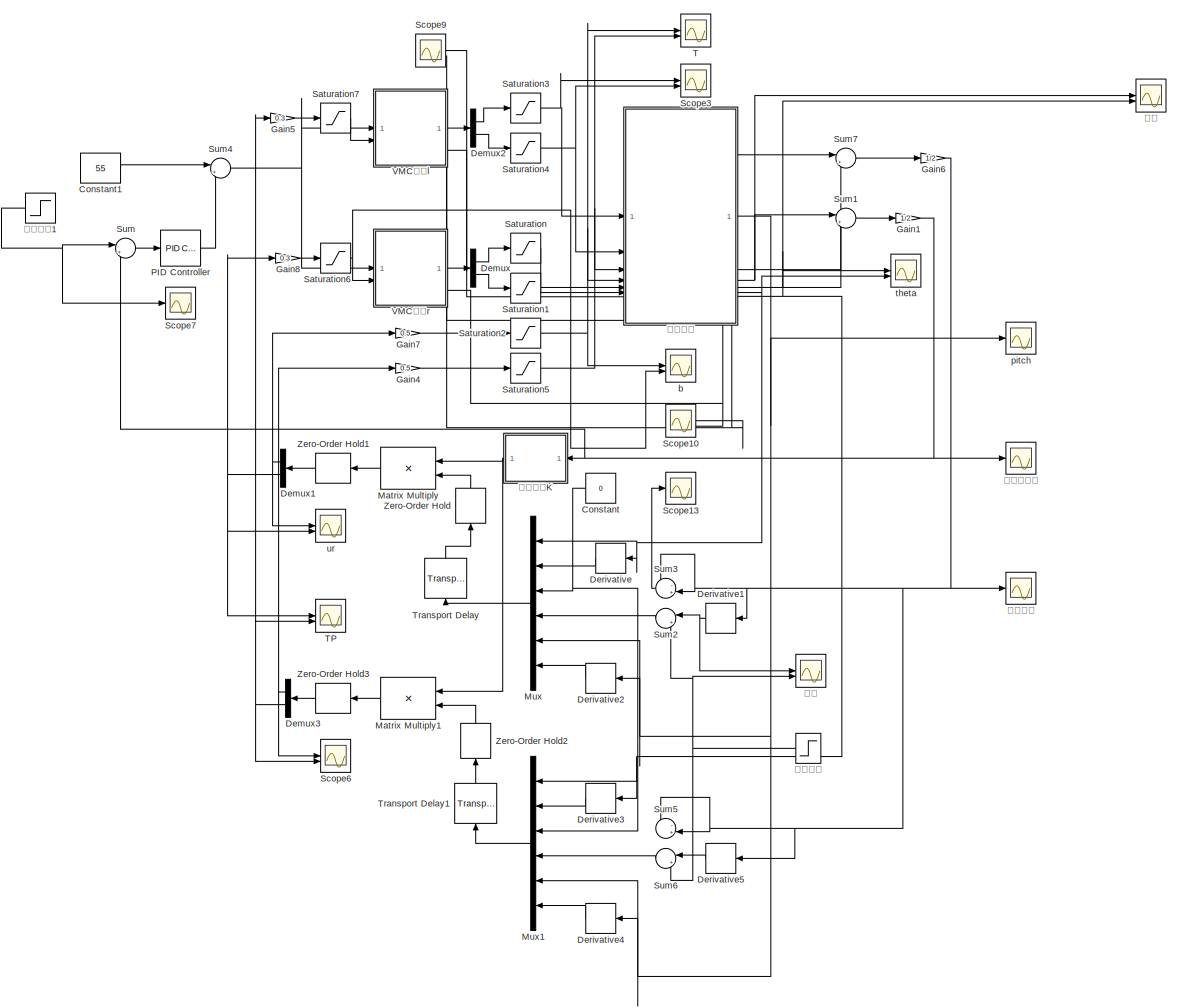
[diagram: root canvas - part 1/1, most of the canvas]
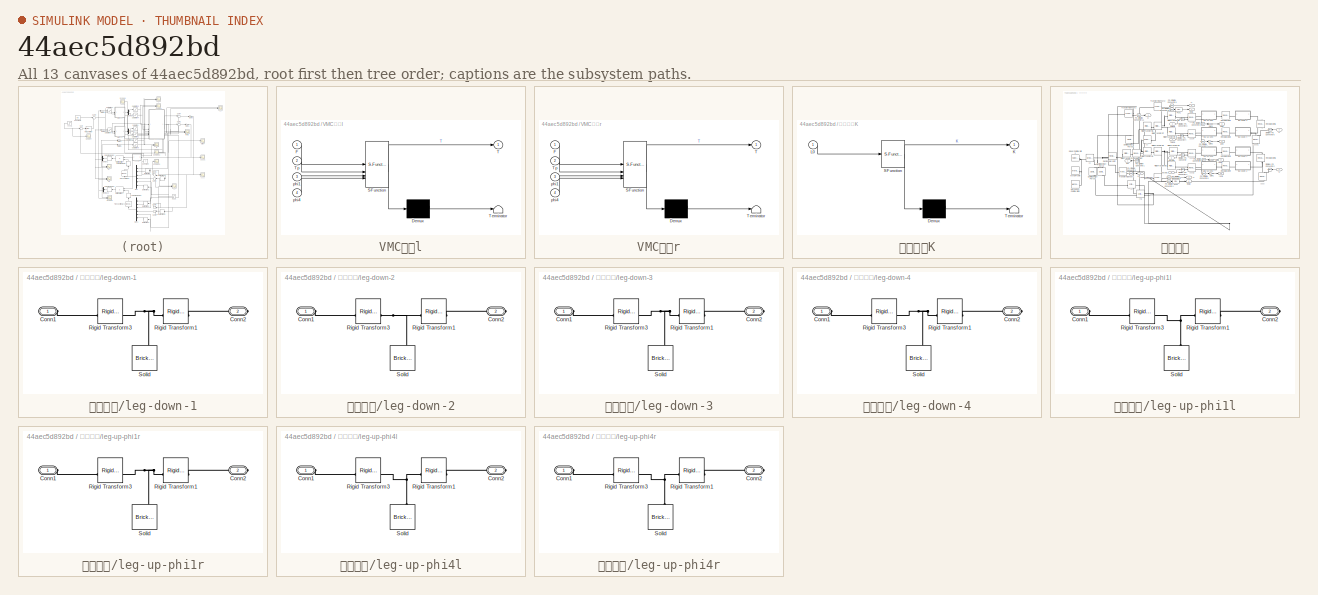
[diagram: thumbnail index - all 13 canvases of the model, root first then tree order]
MODEL slx_44aec5d892bd
KIND model
CONFIG AbsTol = auto
CONFIG EnableMultiTasking = off
CONFIG FixedStep = auto
CONFIG MaxStep = auto
CONFIG MinStep = auto
CONFIG RelTol = 1e-3
CONFIG SampleTimeConstraint = Unconstrained
CONFIG SolverName = VariableStepAuto
CONFIG StartTime = 0.0
CONFIG StopTime = 15
WORKSPACE source: mxarray member
WORKSPACE hip_tmax = 35
WORKSPACE hub_tmax = 100
BLOCK [Constant] Constant
  NameLocation = top
  Value = 0
BLOCK [Constant] Constant1
  Value = 55
BLOCK [Demux] Demux
  Outputs = 2
BLOCK [Demux] Demux1
  NameLocation = top
  Outputs = 2
BLOCK [Demux] Demux2
  Outputs = 2
BLOCK [Demux] Demux3
  NameLocation = top
  Outputs = 2
BLOCK [Derivative] Derivative
BLOCK [Derivative] Derivative1
BLOCK [Derivative] Derivative2
BLOCK [Derivative] Derivative3
BLOCK [Derivative] Derivative4
BLOCK [Derivative] Derivative5
BLOCK [Gain] Gain1
  Gain = 1/2
BLOCK [Gain] Gain4
  Gain = 0.5
BLOCK [Gain] Gain5
  Gain = 0.3
BLOCK [Gain] Gain6
  Gain = 1/2
BLOCK [Gain] Gain7
  Gain = 0.5
BLOCK [Gain] Gain8
  Gain = 0.3
BLOCK [Product] Matrix Multiply
  Multiplication = Matrix(*)
  NameLocation = top
BLOCK [Product] Matrix Multiply1
  Multiplication = Matrix(*)
  NameLocation = top
BLOCK [Mux] Mux
  DisplayOption = bar
  Inputs = 6
  NameLocation = top
BLOCK [Mux] Mux1
  DisplayOption = bar
  Inputs = 6
  NameLocation = top
BLOCK [Reference] PID Controller  REF=slpidlib/PID Controller
  SourceBlock = slpidlib/PID Controller
  SourceType = PID 1dof
BLOCK [Saturate] Saturation
  LowerLimit = -hip_tmax
  UpperLimit = hip_tmax
  ZeroCross = off
BLOCK [Saturate] Saturation1
  LowerLimit = -hip_tmax
  UpperLimit = hip_tmax
  ZeroCross = off
BLOCK [Saturate] Saturation2
  LowerLimit = -hub_tmax
  UpperLimit = hub_tmax
  ZeroCross = off
BLOCK [Saturate] Saturation3
  LowerLimit = -hip_tmax
  UpperLimit = hip_tmax
  ZeroCross = off
BLOCK [Saturate] Saturation4
  LowerLimit = -hip_tmax
  UpperLimit = hip_tmax
  ZeroCross = off
BLOCK [Saturate] Saturation5
  LowerLimit = -hub_tmax
  UpperLimit = hub_tmax
  ZeroCross = off
BLOCK [Saturate] Saturation6
  LowerLimit = -2
  UpperLimit = 2
  ZeroCross = off
BLOCK [Saturate] Saturation7
  LowerLimit = -2
  UpperLimit = 2
  ZeroCross = off
BLOCK [Scope] Scope10
  Floating = off
  NumInputPorts = 2
  ScopeSpecificationString = Simulink.scopes.TimeScopeBlockCfg('CurrentConfiguration', extmgr.ConfigurationSet(extmgr.Configuration('Core','General UI',true,'FigureColor',[1 1 1]),extmgr.Configuration('Core','Source UI',true),extmgr.Configuration('Sources','WiredSimulink',true,'DataLoggingVariableName','ScopeData2'),extmgr.Configuration('Visuals','Time Domain',true,'SerializedDisplays',{struct('MinYLimReal','-1.78671','MaxYLi...<+1716ch>
BLOCK [Scope] Scope13
  Floating = off
  NumInputPorts = 1
  ScopeSpecificationString = Simulink.scopes.TimeScopeBlockCfg('CurrentConfiguration', extmgr.ConfigurationSet(extmgr.Configuration('Core','General UI',true),extmgr.Configuration('Core','Source UI',true),extmgr.Configuration('Sources','WiredSimulink',true,'DataLoggingVariableName','ScopeData2'),extmgr.Configuration('Visuals','Time Domain',true,'SerializedDisplays',{struct('MinYLimReal','-1.00000','MaxYLimReal','1.00000','YLab...<+1529ch>
BLOCK [Scope] Scope3
  Floating = off
  NumInputPorts = 2
  ScopeSpecificationString = Simulink.scopes.TimeScopeBlockCfg('CurrentConfiguration', extmgr.ConfigurationSet(extmgr.Configuration('Core','General UI',true,'FigureColor',[1 1 1]),extmgr.Configuration('Core','Source UI',true),extmgr.Configuration('Sources','WiredSimulink',true,'DataLoggingVariableName','ScopeData1'),extmgr.Configuration('Visuals','Time Domain',true,'SerializedDisplays',{struct('MinYLimReal','-16.36236','MaxYL...<+1724ch>
BLOCK [Scope] Scope6
  Floating = off
  NumInputPorts = 2
  ScopeSpecificationString = Simulink.scopes.TimeScopeBlockCfg('CurrentConfiguration', extmgr.ConfigurationSet(extmgr.Configuration('Core','General UI',true),extmgr.Configuration('Core','Source UI',true),extmgr.Configuration('Sources','WiredSimulink',true,'DataLoggingVariableName','ScopeData1'),extmgr.Configuration('Visuals','Time Domain',true,'SerializedDisplays',{struct('MinYLimReal','-8.98431','MaxYLimReal','26.87388','YLa...<+1597ch>
BLOCK [Scope] Scope7
  Floating = off
  NumInputPorts = 3
  ScopeSpecificationString = Simulink.scopes.TimeScopeBlockCfg('CurrentConfiguration', extmgr.ConfigurationSet(extmgr.Configuration('Core','General UI',true),extmgr.Configuration('Core','Source UI',true),extmgr.Configuration('Sources','WiredSimulink',true,'DataLoggingVariableName','ScopeData2'),extmgr.Configuration('Visuals','Time Domain',true,'SerializedDisplays',{struct('MinYLimReal','0.049','MaxYLimReal','0.56463','YLabelR...<+1607ch>
BLOCK [Scope] Scope9
  Floating = off
  NumInputPorts = 2
  ScopeSpecificationString = Simulink.scopes.TimeScopeBlockCfg('CurrentConfiguration', extmgr.ConfigurationSet(extmgr.Configuration('Core','General UI',true,'FigureColor',[1 1 1]),extmgr.Configuration('Core','Source UI',true),extmgr.Configuration('Sources','WiredSimulink',true,'DataLoggingVariableName','ScopeData1'),extmgr.Configuration('Visuals','Time Domain',true,'SerializedDisplays',{struct('MinYLimReal','-1.90884','MaxYLi...<+1672ch>
BLOCK [Sum] Sum
  Inputs = |+-
BLOCK [Sum] Sum1
  Inputs = |++
BLOCK [Sum] Sum2
  Inputs = |+-
  NameLocation = top
BLOCK [Sum] Sum3
  Inputs = -+|
  NameLocation = top
BLOCK [Sum] Sum4
  Inputs = |++
BLOCK [Sum] Sum5
  Inputs = -+|
  NameLocation = top
BLOCK [Sum] Sum6
  Inputs = |+-
  NameLocation = top
BLOCK [Sum] Sum7
  Inputs = |++
BLOCK [Scope] T
  Floating = off
  NumInputPorts = 2
  ScopeSpecificationString = Simulink.scopes.TimeScopeBlockCfg('CurrentConfiguration', extmgr.ConfigurationSet(extmgr.Configuration('Core','General UI',true,'FigureColor',[1 1 1]),extmgr.Configuration('Core','Source UI',true),extmgr.Configuration('Sources','WiredSimulink',true,'DataLoggingVariableName','ScopeData2'),extmgr.Configuration('Visuals','Time Domain',true,'SerializedDisplays',{struct('MinYLimReal','-1.71141','MaxYLi...<+1673ch>
BLOCK [Scope] TP
  Floating = off
  NumInputPorts = 2
  ScopeSpecificationString = Simulink.scopes.TimeScopeBlockCfg('CurrentConfiguration', extmgr.ConfigurationSet(extmgr.Configuration('Core','General UI',true),extmgr.Configuration('Core','Source UI',true),extmgr.Configuration('Sources','WiredSimulink',true,'DataLoggingVariableName','ScopeData4'),extmgr.Configuration('Visuals','Time Domain',true,'SerializedDisplays',{struct('MinYLimReal','-11.98851','MaxYLimReal','6.26084','YLa...<+1574ch>
BLOCK [TransportDelay] Transport Delay
  DelayTime = 0.0000001
  NameLocation = right
BLOCK [TransportDelay] Transport Delay1
  DelayTime = 0.000001
  NameLocation = right
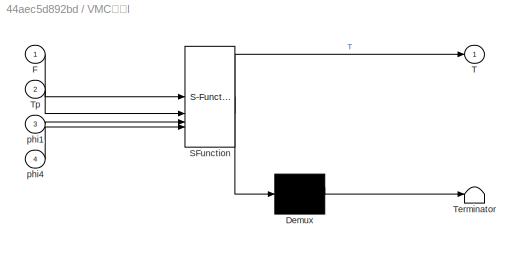
BLOCK [SubSystem] VMC解算l
  ErrorFcn = Stateflow.Translate.translate
  PermitHierarchicalResolution = ExplicitOnly
  SFBlockType = MATLAB Function
  TreatAsAtomicUnit = on
BLOCK [Demux] VMC解算l/ Demux 
  Outputs = 1
BLOCK [S-Function] VMC解算l/ SFunction 
  EnableBusSupport = on
  FunctionName = sf_sfun
  PortCounts = [4 2]
  SFcnIsStateOwnerBlock = off
  SFunctionDeploymentMode = off
  Tag = Stateflow S-Function 3
BLOCK [Terminator] VMC解算l/ Terminator 
BLOCK [Inport] VMC解算l/F
BLOCK [Outport] VMC解算l/T
  VectorParamsAs1DForOutWhenUnconnected = off
BLOCK [Inport] VMC解算l/Tp
  Port = 2
BLOCK [Inport] VMC解算l/phi1
  Port = 3
BLOCK [Inport] VMC解算l/phi4
  Port = 4
BLOCK [SubSystem] VMC解算r
  ErrorFcn = Stateflow.Translate.translate
  PermitHierarchicalResolution = ExplicitOnly
  SFBlockType = MATLAB Function
  TreatAsAtomicUnit = on
BLOCK [Demux] VMC解算r/ Demux 
  Outputs = 1
BLOCK [S-Function] VMC解算r/ SFunction 
  EnableBusSupport = on
  FunctionName = sf_sfun
  PortCounts = [4 2]
  SFcnIsStateOwnerBlock = off
  SFunctionDeploymentMode = off
  Tag = Stateflow S-Function 2
BLOCK [Terminator] VMC解算r/ Terminator 
BLOCK [Inport] VMC解算r/F
BLOCK [Outport] VMC解算r/T
  VectorParamsAs1DForOutWhenUnconnected = off
BLOCK [Inport] VMC解算r/Tp
  Port = 2
BLOCK [Inport] VMC解算r/phi1
  Port = 3
BLOCK [Inport] VMC解算r/phi4
  Port = 4
BLOCK [ZeroOrderHold] Zero-Order Hold
  NameLocation = left
  SampleTime = -1
BLOCK [ZeroOrderHold] Zero-Order Hold1
  SampleTime = 0.003
BLOCK [ZeroOrderHold] Zero-Order Hold2
  NameLocation = left
  SampleTime = -1
BLOCK [ZeroOrderHold] Zero-Order Hold3
  SampleTime = 0.003
BLOCK [Scope] b
  Floating = off
  NumInputPorts = 2
  ScopeSpecificationString = Simulink.scopes.TimeScopeBlockCfg('CurrentConfiguration', extmgr.ConfigurationSet(extmgr.Configuration('Core','General UI',true),extmgr.Configuration('Core','Source UI',true),extmgr.Configuration('Sources','WiredSimulink',true,'DataLoggingVariableName','ScopeData1'),extmgr.Configuration('Visuals','Time Domain',true,'SerializedDisplays',{struct('MinYLimReal','-2.5','MaxYLimReal','2.5','YLabelReal',...<+1436ch>
BLOCK [Scope] pitch
  Floating = off
  NumInputPorts = 1
  ScopeSpecificationString = Simulink.scopes.TimeScopeBlockCfg('CurrentConfiguration', extmgr.ConfigurationSet(extmgr.Configuration('Core','General UI',true),extmgr.Configuration('Core','Source UI',true),extmgr.Configuration('Sources','WiredSimulink',true,'DataLoggingVariableName','ScopeData3'),extmgr.Configuration('Visuals','Time Domain',true,'SerializedDisplays',{struct('MinYLimReal','-0.25513','MaxYLimReal','0.12543','YLab...<+1554ch>
BLOCK [Scope] theta
  Floating = off
  NumInputPorts = 2
  ScopeSpecificationString = Simulink.scopes.TimeScopeBlockCfg('CurrentConfiguration', extmgr.ConfigurationSet(extmgr.Configuration('Core','General UI',true,'FigureColor',[1 1 1]),extmgr.Configuration('Core','Source UI',true),extmgr.Configuration('Sources','WiredSimulink',true),extmgr.Configuration('Visuals','Time Domain',true,'SerializedDisplays',{struct('MinYLimReal','-0.13217','MaxYLimReal','0.31689','YLabelReal','','MinYL...<+1666ch>
BLOCK [Scope] ur
  Floating = off
  NumInputPorts = 2
  ScopeSpecificationString = Simulink.scopes.TimeScopeBlockCfg('CurrentConfiguration', extmgr.ConfigurationSet(extmgr.Configuration('Core','General UI',true),extmgr.Configuration('Core','Source UI',true),extmgr.Configuration('Sources','WiredSimulink',true,'DataLoggingVariableName','ScopeData5'),extmgr.Configuration('Visuals','Time Domain',true,'SerializedDisplays',{struct('MinYLimReal','-9.12615','MaxYLimReal','8.43743','YLab...<+1573ch>
BLOCK [SubSystem] 反馈矩阵K
  ErrorFcn = Stateflow.Translate.translate
  PermitHierarchicalResolution = ExplicitOnly
  SFBlockType = MATLAB Function
  TreatAsAtomicUnit = on
BLOCK [Demux] 反馈矩阵K/ Demux 
  Outputs = 1
BLOCK [S-Function] 反馈矩阵K/ SFunction 
  EnableBusSupport = on
  FunctionName = sf_sfun
  PortCounts = [1 2]
  SFcnIsStateOwnerBlock = off
  SFunctionDeploymentMode = off
  Tag = Stateflow S-Function 1
BLOCK [Terminator] 反馈矩阵K/ Terminator 
BLOCK [Outport] 反馈矩阵K/K
  VectorParamsAs1DForOutWhenUnconnected = off
BLOCK [Inport] 反馈矩阵K/L0
BLOCK [Scope] 平均位移
  Floating = off
  NumInputPorts = 1
  ScopeSpecificationString = Simulink.scopes.TimeScopeBlockCfg('CurrentConfiguration', extmgr.ConfigurationSet(extmgr.Configuration('Core','General UI',true),extmgr.Configuration('Core','Source UI',true),extmgr.Configuration('Sources','WiredSimulink',true,'DataLoggingVariableName','ScopeData1'),extmgr.Configuration('Visuals','Time Domain',true,'SerializedDisplays',{struct('MinYLimReal','4.25919','MaxYLimReal','7.58431','YLabe...<+1501ch>
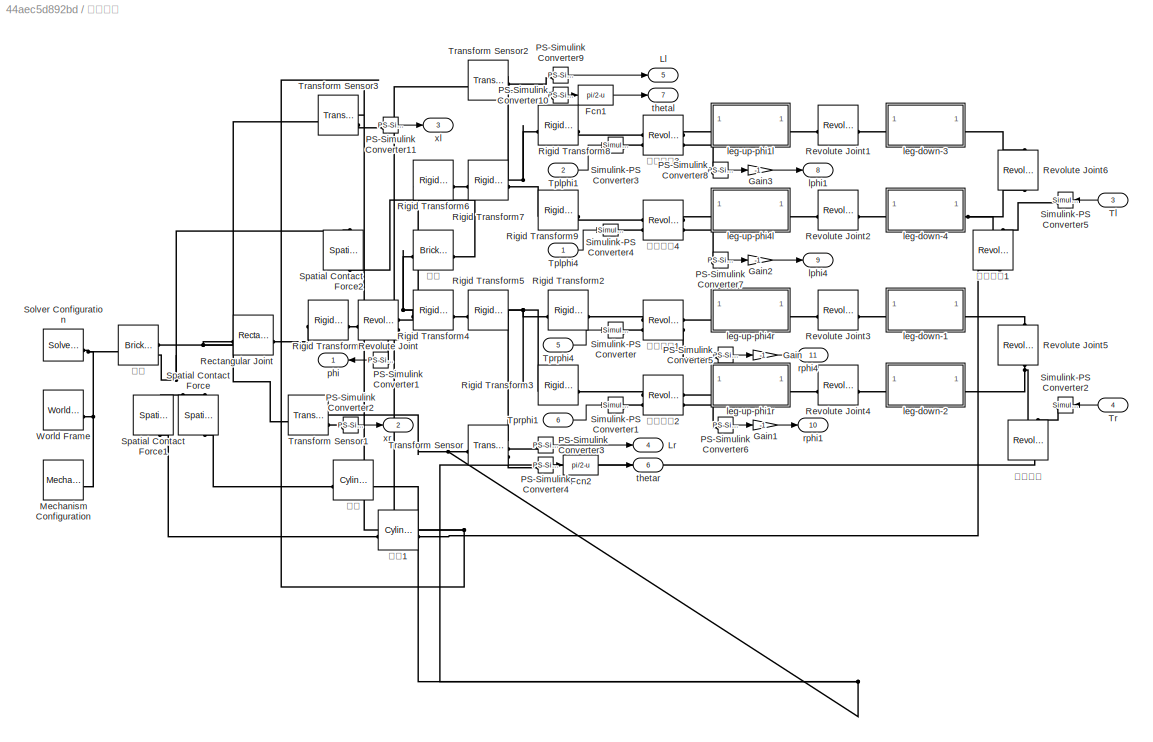
BLOCK [SubSystem] 物理系统
  PortSchema = {"entries":[{"content":{"sides":[{"content":{"connectorIds":["In1","In2","Out8","Out9","In3","In4","In5","Out10","In6","Out11"]},"type":"ConnectorPlacement.EquallySpacedRectSide","uuid":"664d59a3-0a31-49e2-bbc6-fa33d49ec8c0"},{"content":{"connectorIds":["Out1","Out2","Out3","Out4","Out5","Out6","Out7"],"side":"RIGHT"},"type":"ConnectorPlacement.EquallySpacedRectSide","uuid":"d048cd87-328e-45c8-839...<+324ch>
BLOCK [Fcn] 物理系统/Fcn1
  Expr = pi/2-u
BLOCK [Fcn] 物理系统/Fcn2
  Expr = pi/2-u
BLOCK [Gain] 物理系统/Gain
  Gain = -1
BLOCK [Gain] 物理系统/Gain1
  Gain = -1
BLOCK [Gain] 物理系统/Gain2
  Gain = -1
BLOCK [Gain] 物理系统/Gain3
  Gain = -1
BLOCK [Outport] 物理系统/Ll
  NameLocation = right
  Port = 5
BLOCK [Outport] 物理系统/Lr
  NameLocation = right
  Port = 4
BLOCK [Reference] 物理系统/Mechanism Configuration  REF=sm_lib/Utilities/Mechanism
Configuration
  SourceBlock = sm_lib/Utilities/Mechanism\nConfiguration
  SourceType = Mechanism\nConfiguration
BLOCK [Reference] 物理系统/PS-Simulink Converter1  REF=nesl_utility/PS-Simulink
Converter
  SourceBlock = nesl_utility/PS-Simulink\nConverter
  SourceType = PS-Simulink\nConverter
BLOCK [Reference] 物理系统/PS-Simulink Converter10  REF=nesl_utility/PS-Simulink
Converter
  NameLocation = top
  SourceBlock = nesl_utility/PS-Simulink\nConverter
  SourceType = PS-Simulink\nConverter
BLOCK [Reference] 物理系统/PS-Simulink Converter11  REF=nesl_utility/PS-Simulink
Converter
  NameLocation = top
  SourceBlock = nesl_utility/PS-Simulink\nConverter
  SourceType = PS-Simulink\nConverter
BLOCK [Reference] 物理系统/PS-Simulink Converter2  REF=nesl_utility/PS-Simulink
Converter
  NameLocation = top
  SourceBlock = nesl_utility/PS-Simulink\nConverter
  SourceType = PS-Simulink\nConverter
BLOCK [Reference] 物理系统/PS-Simulink Converter3  REF=nesl_utility/PS-Simulink
Converter
  NameLocation = top
  SourceBlock = nesl_utility/PS-Simulink\nConverter
  SourceType = PS-Simulink\nConverter
BLOCK [Reference] 物理系统/PS-Simulink Converter4  REF=nesl_utility/PS-Simulink
Converter
  NameLocation = top
  SourceBlock = nesl_utility/PS-Simulink\nConverter
  SourceType = PS-Simulink\nConverter
BLOCK [Reference] 物理系统/PS-Simulink Converter5  REF=nesl_utility/PS-Simulink
Converter
  NameLocation = top
  SourceBlock = nesl_utility/PS-Simulink\nConverter
  SourceType = PS-Simulink\nConverter
BLOCK [Reference] 物理系统/PS-Simulink Converter6  REF=nesl_utility/PS-Simulink
Converter
  NameLocation = top
  SourceBlock = nesl_utility/PS-Simulink\nConverter
  SourceType = PS-Simulink\nConverter
BLOCK [Reference] 物理系统/PS-Simulink Converter7  REF=nesl_utility/PS-Simulink
Converter
  NameLocation = left
  SourceBlock = nesl_utility/PS-Simulink\nConverter
  SourceType = PS-Simulink\nConverter
BLOCK [Reference] 物理系统/PS-Simulink Converter8  REF=nesl_utility/PS-Simulink
Converter
  NameLocation = top
  SourceBlock = nesl_utility/PS-Simulink\nConverter
  SourceType = PS-Simulink\nConverter
BLOCK [Reference] 物理系统/PS-Simulink Converter9  REF=nesl_utility/PS-Simulink
Converter
  NameLocation = top
  SourceBlock = nesl_utility/PS-Simulink\nConverter
  SourceType = PS-Simulink\nConverter
BLOCK [Reference] 物理系统/Rectangular Joint  REF=sm_lib/Joints/Rectangular
Joint
  SourceBlock = sm_lib/Joints/Rectangular\nJoint
  SourceType = Rectangular\nJoint
BLOCK [Reference] 物理系统/Revolute Joint  REF=sm_lib/Joints/Revolute Joint
  SourceBlock = sm_lib/Joints/Revolute Joint
  SourceType = Revolute Joint
BLOCK [Reference] 物理系统/Revolute Joint1  REF=sm_lib/Joints/Revolute Joint
  SourceBlock = sm_lib/Joints/Revolute Joint
  SourceType = Revolute Joint
BLOCK [Reference] 物理系统/Revolute Joint2  REF=sm_lib/Joints/Revolute Joint
  SourceBlock = sm_lib/Joints/Revolute Joint
  SourceType = Revolute Joint
BLOCK [Reference] 物理系统/Revolute Joint3  REF=sm_lib/Joints/Revolute Joint
  SourceBlock = sm_lib/Joints/Revolute Joint
  SourceType = Revolute Joint
BLOCK [Reference] 物理系统/Revolute Joint4  REF=sm_lib/Joints/Revolute Joint
  SourceBlock = sm_lib/Joints/Revolute Joint
  SourceType = Revolute Joint
BLOCK [Reference] 物理系统/Revolute Joint5  REF=sm_lib/Joints/Revolute Joint
  NameLocation = right
  SourceBlock = sm_lib/Joints/Revolute Joint
  SourceType = Revolute Joint
BLOCK [Reference] 物理系统/Revolute Joint6  REF=sm_lib/Joints/Revolute Joint
  NameLocation = right
  SourceBlock = sm_lib/Joints/Revolute Joint
  SourceType = Revolute Joint
BLOCK [Reference] 物理系统/Rigid Transform1  REF=sm_lib/Frames and
Transforms/Rigid
Transform
  SourceBlock = sm_lib/Frames and\nTransforms/Rigid\nTransform
  SourceType = Rigid\nTransform
BLOCK [Reference] 物理系统/Rigid Transform2  REF=sm_lib/Frames and
Transforms/Rigid
Transform
  SourceBlock = sm_lib/Frames and\nTransforms/Rigid\nTransform
  SourceType = Rigid\nTransform
BLOCK [Reference] 物理系统/Rigid Transform3  REF=sm_lib/Frames and
Transforms/Rigid
Transform
  SourceBlock = sm_lib/Frames and\nTransforms/Rigid\nTransform
  SourceType = Rigid\nTransform
BLOCK [Reference] 物理系统/Rigid Transform4  REF=sm_lib/Frames and
Transforms/Rigid
Transform
  SourceBlock = sm_lib/Frames and\nTransforms/Rigid\nTransform
  SourceType = Rigid\nTransform
BLOCK [Reference] 物理系统/Rigid Transform5  REF=sm_lib/Frames and
Transforms/Rigid
Transform
  SourceBlock = sm_lib/Frames and\nTransforms/Rigid\nTransform
  SourceType = Rigid\nTransform
BLOCK [Reference] 物理系统/Rigid Transform6  REF=sm_lib/Frames and
Transforms/Rigid
Transform
  SourceBlock = sm_lib/Frames and\nTransforms/Rigid\nTransform
  SourceType = Rigid\nTransform
BLOCK [Reference] 物理系统/Rigid Transform7  REF=sm_lib/Frames and
Transforms/Rigid
Transform
  SourceBlock = sm_lib/Frames and\nTransforms/Rigid\nTransform
  SourceType = Rigid\nTransform
BLOCK [Reference] 物理系统/Rigid Transform8  REF=sm_lib/Frames and
Transforms/Rigid
Transform
  SourceBlock = sm_lib/Frames and\nTransforms/Rigid\nTransform
  SourceType = Rigid\nTransform
BLOCK [Reference] 物理系统/Rigid Transform9  REF=sm_lib/Frames and
Transforms/Rigid
Transform
  SourceBlock = sm_lib/Frames and\nTransforms/Rigid\nTransform
  SourceType = Rigid\nTransform
BLOCK [Reference] 物理系统/Simulink-PS Converter  REF=nesl_utility/Simulink-PS
Converter
  SourceBlock = nesl_utility/Simulink-PS\nConverter
  SourceType = Simulink-PS\nConverter
BLOCK [Reference] 物理系统/Simulink-PS Converter1  REF=nesl_utility/Simulink-PS
Converter
  SourceBlock = nesl_utility/Simulink-PS\nConverter
  SourceType = Simulink-PS\nConverter
BLOCK [Reference] 物理系统/Simulink-PS Converter2  REF=nesl_utility/Simulink-PS
Converter
  NameLocation = top
  SourceBlock = nesl_utility/Simulink-PS\nConverter
  SourceType = Simulink-PS\nConverter
BLOCK [Reference] 物理系统/Simulink-PS Converter3  REF=nesl_utility/Simulink-PS
Converter
  SourceBlock = nesl_utility/Simulink-PS\nConverter
  SourceType = Simulink-PS\nConverter
BLOCK [Reference] 物理系统/Simulink-PS Converter4  REF=nesl_utility/Simulink-PS
Converter
  SourceBlock = nesl_utility/Simulink-PS\nConverter
  SourceType = Simulink-PS\nConverter
BLOCK [Reference] 物理系统/Simulink-PS Converter5  REF=nesl_utility/Simulink-PS
Converter
  NameLocation = top
  SourceBlock = nesl_utility/Simulink-PS\nConverter
  SourceType = Simulink-PS\nConverter
BLOCK [Reference] 物理系统/Solver Configuration  REF=nesl_utility/Solver
Configuration
  SourceBlock = nesl_utility/Solver\nConfiguration
  SourceType = Solver\nConfiguration
BLOCK [Reference] 物理系统/Spatial Contact Force  REF=sm_lib/Forces and
Torques/Spatial
Contact Force
  NameLocation = left
  SourceBlock = sm_lib/Forces and\nTorques/Spatial\nContact Force
  SourceType = Spatial\nContact Force
BLOCK [Reference] 物理系统/Spatial Contact Force1  REF=sm_lib/Forces and
Torques/Spatial
Contact Force
  NameLocation = left
  SourceBlock = sm_lib/Forces and\nTorques/Spatial\nContact Force
  SourceType = Spatial\nContact Force
BLOCK [Reference] 物理系统/Spatial Contact Force2  REF=sm_lib/Forces and
Torques/Spatial
Contact Force
  NameLocation = left
  SourceBlock = sm_lib/Forces and\nTorques/Spatial\nContact Force
  SourceType = Spatial\nContact Force
BLOCK [Inport] 物理系统/Tl
  NameLocation = right
  Port = 3
BLOCK [Inport] 物理系统/Tplphi1
  NameLocation = left
  Port = 2
BLOCK [Inport] 物理系统/Tplphi4
  NameLocation = left
BLOCK [Inport] 物理系统/Tprphi1
  NameLocation = left
  Port = 6
BLOCK [Inport] 物理系统/Tprphi4
  NameLocation = left
  Port = 5
BLOCK [Inport] 物理系统/Tr
  NameLocation = right
  Port = 4
BLOCK [Reference] 物理系统/Transform Sensor  REF=sm_lib/Frames and
Transforms/Transform
Sensor
  SourceBlock = sm_lib/Frames and\nTransforms/Transform\nSensor
  SourceType = Transform\nSensor
BLOCK [Reference] 物理系统/Transform Sensor1  REF=sm_lib/Frames and
Transforms/Transform
Sensor
  SourceBlock = sm_lib/Frames and\nTransforms/Transform\nSensor
  SourceType = Transform\nSensor
BLOCK [Reference] 物理系统/Transform Sensor2  REF=sm_lib/Frames and
Transforms/Transform
Sensor
  SourceBlock = sm_lib/Frames and\nTransforms/Transform\nSensor
  SourceType = Transform\nSensor
BLOCK [Reference] 物理系统/Transform Sensor3  REF=sm_lib/Frames and
Transforms/Transform
Sensor
  SourceBlock = sm_lib/Frames and\nTransforms/Transform\nSensor
  SourceType = Transform\nSensor
BLOCK [Reference] 物理系统/World Frame  REF=sm_lib/Frames and
Transforms/World Frame
  SourceBlock = sm_lib/Frames and\nTransforms/World Frame
  SourceType = World Frame
BLOCK [SubSystem] 物理系统/leg-down-1
BLOCK [PMIOPort] 物理系统/leg-down-1/Conn1
  Side = Left
BLOCK [PMIOPort] 物理系统/leg-down-1/Conn2
  Port = 2
  Side = Right
BLOCK [Reference] 物理系统/leg-down-1/Rigid Transform1  REF=sm_lib/Frames and
Transforms/Rigid
Transform
  SourceBlock = sm_lib/Frames and\nTransforms/Rigid\nTransform
  SourceType = Rigid\nTransform
BLOCK [Reference] 物理系统/leg-down-1/Rigid Transform3  REF=sm_lib/Frames and
Transforms/Rigid
Transform
  SourceBlock = sm_lib/Frames and\nTransforms/Rigid\nTransform
  SourceType = Rigid\nTransform
BLOCK [Reference] 物理系统/leg-down-1/Solid  REF=sm_lib/Body Elements/Brick Solid
  NameLocation = right
  SourceBlock = sm_lib/Body Elements/Brick Solid
  SourceType = Brick Solid
BLOCK [SubSystem] 物理系统/leg-down-2
BLOCK [PMIOPort] 物理系统/leg-down-2/Conn1
  Side = Left
BLOCK [PMIOPort] 物理系统/leg-down-2/Conn2
  Port = 2
  Side = Right
BLOCK [Reference] 物理系统/leg-down-2/Rigid Transform1  REF=sm_lib/Frames and
Transforms/Rigid
Transform
  SourceBlock = sm_lib/Frames and\nTransforms/Rigid\nTransform
  SourceType = Rigid\nTransform
BLOCK [Reference] 物理系统/leg-down-2/Rigid Transform3  REF=sm_lib/Frames and
Transforms/Rigid
Transform
  SourceBlock = sm_lib/Frames and\nTransforms/Rigid\nTransform
  SourceType = Rigid\nTransform
BLOCK [Reference] 物理系统/leg-down-2/Solid  REF=sm_lib/Body Elements/Brick Solid
  NameLocation = right
  SourceBlock = sm_lib/Body Elements/Brick Solid
  SourceType = Brick Solid
BLOCK [SubSystem] 物理系统/leg-down-3
BLOCK [PMIOPort] 物理系统/leg-down-3/Conn1
  Side = Left
BLOCK [PMIOPort] 物理系统/leg-down-3/Conn2
  Port = 2
  Side = Right
BLOCK [Reference] 物理系统/leg-down-3/Rigid Transform1  REF=sm_lib/Frames and
Transforms/Rigid
Transform
  SourceBlock = sm_lib/Frames and\nTransforms/Rigid\nTransform
  SourceType = Rigid\nTransform
BLOCK [Reference] 物理系统/leg-down-3/Rigid Transform3  REF=sm_lib/Frames and
Transforms/Rigid
Transform
  SourceBlock = sm_lib/Frames and\nTransforms/Rigid\nTransform
  SourceType = Rigid\nTransform
BLOCK [Reference] 物理系统/leg-down-3/Solid  REF=sm_lib/Body Elements/Brick Solid
  NameLocation = right
  SourceBlock = sm_lib/Body Elements/Brick Solid
  SourceType = Brick Solid
BLOCK [SubSystem] 物理系统/leg-down-4
BLOCK [PMIOPort] 物理系统/leg-down-4/Conn1
  Side = Left
BLOCK [PMIOPort] 物理系统/leg-down-4/Conn2
  Port = 2
  Side = Right
BLOCK [Reference] 物理系统/leg-down-4/Rigid Transform1  REF=sm_lib/Frames and
Transforms/Rigid
Transform
  SourceBlock = sm_lib/Frames and\nTransforms/Rigid\nTransform
  SourceType = Rigid\nTransform
BLOCK [Reference] 物理系统/leg-down-4/Rigid Transform3  REF=sm_lib/Frames and
Transforms/Rigid
Transform
  SourceBlock = sm_lib/Frames and\nTransforms/Rigid\nTransform
  SourceType = Rigid\nTransform
BLOCK [Reference] 物理系统/leg-down-4/Solid  REF=sm_lib/Body Elements/Brick Solid
  NameLocation = right
  SourceBlock = sm_lib/Body Elements/Brick Solid
  SourceType = Brick Solid
BLOCK [SubSystem] 物理系统/leg-up-phi1l
BLOCK [PMIOPort] 物理系统/leg-up-phi1l/Conn1
  Side = Left
BLOCK [PMIOPort] 物理系统/leg-up-phi1l/Conn2
  Port = 2
  Side = Right
BLOCK [Reference] 物理系统/leg-up-phi1l/Rigid Transform1  REF=sm_lib/Frames and
Transforms/Rigid
Transform
  SourceBlock = sm_lib/Frames and\nTransforms/Rigid\nTransform
  SourceType = Rigid\nTransform
BLOCK [Reference] 物理系统/leg-up-phi1l/Rigid Transform3  REF=sm_lib/Frames and
Transforms/Rigid
Transform
  SourceBlock = sm_lib/Frames and\nTransforms/Rigid\nTransform
  SourceType = Rigid\nTransform
BLOCK [Reference] 物理系统/leg-up-phi1l/Solid  REF=sm_lib/Body Elements/Brick Solid
  NameLocation = right
  SourceBlock = sm_lib/Body Elements/Brick Solid
  SourceType = Brick Solid
BLOCK [SubSystem] 物理系统/leg-up-phi1r
BLOCK [PMIOPort] 物理系统/leg-up-phi1r/Conn1
  Side = Left
BLOCK [PMIOPort] 物理系统/leg-up-phi1r/Conn2
  Port = 2
  Side = Right
BLOCK [Reference] 物理系统/leg-up-phi1r/Rigid Transform1  REF=sm_lib/Frames and
Transforms/Rigid
Transform
  SourceBlock = sm_lib/Frames and\nTransforms/Rigid\nTransform
  SourceType = Rigid\nTransform
BLOCK [Reference] 物理系统/leg-up-phi1r/Rigid Transform3  REF=sm_lib/Frames and
Transforms/Rigid
Transform
  SourceBlock = sm_lib/Frames and\nTransforms/Rigid\nTransform
  SourceType = Rigid\nTransform
BLOCK [Reference] 物理系统/leg-up-phi1r/Solid  REF=sm_lib/Body Elements/Brick Solid
  NameLocation = right
  SourceBlock = sm_lib/Body Elements/Brick Solid
  SourceType = Brick Solid
BLOCK [SubSystem] 物理系统/leg-up-phi4l
BLOCK [PMIOPort] 物理系统/leg-up-phi4l/Conn1
  Side = Left
BLOCK [PMIOPort] 物理系统/leg-up-phi4l/Conn2
  Port = 2
  Side = Right
BLOCK [Reference] 物理系统/leg-up-phi4l/Rigid Transform1  REF=sm_lib/Frames and
Transforms/Rigid
Transform
  SourceBlock = sm_lib/Frames and\nTransforms/Rigid\nTransform
  SourceType = Rigid\nTransform
BLOCK [Reference] 物理系统/leg-up-phi4l/Rigid Transform3  REF=sm_lib/Frames and
Transforms/Rigid
Transform
  SourceBlock = sm_lib/Frames and\nTransforms/Rigid\nTransform
  SourceType = Rigid\nTransform
BLOCK [Reference] 物理系统/leg-up-phi4l/Solid  REF=sm_lib/Body Elements/Brick Solid
  NameLocation = right
  SourceBlock = sm_lib/Body Elements/Brick Solid
  SourceType = Brick Solid
BLOCK [SubSystem] 物理系统/leg-up-phi4r
BLOCK [PMIOPort] 物理系统/leg-up-phi4r/Conn1
  Side = Left
BLOCK [PMIOPort] 物理系统/leg-up-phi4r/Conn2
  Port = 2
  Side = Right
BLOCK [Reference] 物理系统/leg-up-phi4r/Rigid Transform1  REF=sm_lib/Frames and
Transforms/Rigid
Transform
  SourceBlock = sm_lib/Frames and\nTransforms/Rigid\nTransform
  SourceType = Rigid\nTransform
BLOCK [Reference] 物理系统/leg-up-phi4r/Rigid Transform3  REF=sm_lib/Frames and
Transforms/Rigid
Transform
  SourceBlock = sm_lib/Frames and\nTransforms/Rigid\nTransform
  SourceType = Rigid\nTransform
BLOCK [Reference] 物理系统/leg-up-phi4r/Solid  REF=sm_lib/Body Elements/Brick Solid
  NameLocation = right
  SourceBlock = sm_lib/Body Elements/Brick Solid
  SourceType = Brick Solid
BLOCK [Outport] 物理系统/lphi1
  NameLocation = right
  Port = 8
BLOCK [Outport] 物理系统/lphi4
  NameLocation = right
  Port = 9
BLOCK [Outport] 物理系统/phi
  NameLocation = left
BLOCK [Outport] 物理系统/rphi1
  NameLocation = right
  Port = 10
BLOCK [Outport] 物理系统/rphi4
  NameLocation = right
  Port = 11
BLOCK [Outport] 物理系统/thetal
  NameLocation = right
  Port = 7
BLOCK [Outport] 物理系统/thetar
  NameLocation = right
  Port = 6
BLOCK [Outport] 物理系统/xl
  NameLocation = right
  Port = 3
BLOCK [Outport] 物理系统/xr
  NameLocation = right
  Port = 2
BLOCK [Reference] 物理系统/关节电机1  REF=sm_lib/Joints/Revolute Joint
  SourceBlock = sm_lib/Joints/Revolute Joint
  SourceType = Revolute Joint
BLOCK [Reference] 物理系统/关节电机2  REF=sm_lib/Joints/Revolute Joint
  SourceBlock = sm_lib/Joints/Revolute Joint
  SourceType = Revolute Joint
BLOCK [Reference] 物理系统/关节电机3  REF=sm_lib/Joints/Revolute Joint
  SourceBlock = sm_lib/Joints/Revolute Joint
  SourceType = Revolute Joint
BLOCK [Reference] 物理系统/关节电机4  REF=sm_lib/Joints/Revolute Joint
  SourceBlock = sm_lib/Joints/Revolute Joint
  SourceType = Revolute Joint
BLOCK [Reference] 物理系统/地面  REF=sm_lib/Body Elements/Brick Solid
  SourceBlock = sm_lib/Body Elements/Brick Solid
  SourceType = Brick Solid
BLOCK [Reference] 物理系统/机体  REF=sm_lib/Body Elements/Brick Solid
  SourceBlock = sm_lib/Body Elements/Brick Solid
  SourceType = Brick Solid
BLOCK [Reference] 物理系统/车轮  REF=sm_lib/Body Elements/Cylindrical Solid
  SourceBlock = sm_lib/Body Elements/Cylindrical Solid
  SourceType = Cylindrical Solid
BLOCK [Reference] 物理系统/车轮1  REF=sm_lib/Body Elements/Cylindrical Solid
  SourceBlock = sm_lib/Body Elements/Cylindrical Solid
  SourceType = Cylindrical Solid
BLOCK [Reference] 物理系统/车轮电机  REF=sm_lib/Joints/Revolute Joint
  SourceBlock = sm_lib/Joints/Revolute Joint
  SourceType = Revolute Joint
BLOCK [Reference] 物理系统/车轮电机1  REF=sm_lib/Joints/Revolute Joint
  SourceBlock = sm_lib/Joints/Revolute Joint
  SourceType = Revolute Joint
BLOCK [Scope] 腿长
  Floating = off
  NumInputPorts = 2
  ScopeSpecificationString = Simulink.scopes.TimeScopeBlockCfg('CurrentConfiguration', extmgr.ConfigurationSet(extmgr.Configuration('Core','General UI',true,'FigureColor',[1 1 1]),extmgr.Configuration('Core','Source UI',true),extmgr.Configuration('Sources','WiredSimulink',true,'DataLoggingVariableName','ScopeData3'),extmgr.Configuration('Visuals','Time Domain',true,'SerializedDisplays',{struct('MinYLimReal','0.09791','MaxYLim...<+1671ch>
BLOCK [Scope] 腿长平均值
  Floating = off
  NumInputPorts = 1
  ScopeSpecificationString = Simulink.scopes.TimeScopeBlockCfg('CurrentConfiguration', extmgr.ConfigurationSet(extmgr.Configuration('Core','General UI',true),extmgr.Configuration('Core','Source UI',true),extmgr.Configuration('Sources','WiredSimulink',true,'DataLoggingVariableName','ScopeData1'),extmgr.Configuration('Visuals','Time Domain',true,'SerializedDisplays',{struct('MinYLimReal','0.05963','MaxYLimReal','0.31893','YLabe...<+1528ch>
BLOCK [Step] 腿长给定1
  After = 0.2
  Before = 0.2
  SampleTime = 0
  Time = 2
BLOCK [Scope] 速度
  Floating = off
  NumInputPorts = 2
  ScopeSpecificationString = Simulink.scopes.TimeScopeBlockCfg('CurrentConfiguration', extmgr.ConfigurationSet(extmgr.Configuration('Core','General UI',true,'FigureColor',[1 1 1]),extmgr.Configuration('Core','Source UI',true),extmgr.Configuration('Sources','WiredSimulink',true,'DataLoggingVariableName','ScopeData3'),extmgr.Configuration('Visuals','Time Domain',true,'SerializedDisplays',{struct('MinYLimReal','-0.98206','MaxYLi...<+1760ch>
BLOCK [Step] 速度给定
  After = 1.5
  SampleTime = 0
  Time = 2
LINE Constant1:1 -> Sum4:1
NET Constant:1 -> Mux1:3, Mux:3
NET Demux1:1 -> Gain7:1, ur:1
NET Demux1:2 -> Gain8:1, TP:1, ur:2
LINE Demux2:1 -> Saturation3:1
LINE Demux2:2 -> Saturation4:1
NET Demux3:1 -> Gain4:1, Scope6:1
NET Demux3:2 -> Gain5:1, Scope6:2, TP:2
LINE Demux:1 -> Saturation:1
LINE Demux:2 -> Saturation1:1
NET Derivative1:1 -> Sum2:1, 速度:1
LINE Derivative2:1 -> Mux:6
LINE Derivative3:1 -> Mux1:2
LINE Derivative4:1 -> Mux1:6
LINE Derivative5:1 -> Sum6:1
LINE Derivative:1 -> Mux:2
NET Gain1:1 -> Sum:2, 反馈矩阵K:1, 腿长平均值:1
LINE Gain4:1 -> Saturation5:1
LINE Gain5:1 -> Saturation7:1
NET Gain6:1 -> Derivative1:1, Derivative5:1, Sum3:1, Sum3:2, Sum5:1, Sum5:2, 平均位移:1
LINE Gain7:1 -> Saturation2:1
LINE Gain8:1 -> Saturation6:1
LINE Matrix Multiply1:1 -> Zero-Order Hold3:1
LINE Matrix Multiply:1 -> Zero-Order Hold1:1
LINE Mux1:1 -> Transport Delay1:1
LINE Mux:1 -> Transport Delay:1
LINE PID Controller:1 -> Sum4:2
LINE Saturation1:1 -> 物理系统:6
NET Saturation2:1 -> T:1, b:1, 物理系统:4
NET Saturation3:1 -> Scope3:1, 物理系统:1
NET Saturation4:1 -> Scope3:2, 物理系统:2
NET Saturation5:1 -> T:2, 物理系统:3
NET Saturation6:1 -> VMC解算r:2, b:2
LINE Saturation7:1 -> VMC解算l:2
LINE Saturation:1 -> 物理系统:5
LINE Sum1:1 -> Gain1:1
LINE Sum2:1 -> Mux:4
LINE Sum3:1 -> Scope13:1
NET Sum4:1 -> VMC解算l:1, VMC解算r:1
LINE Sum6:1 -> Mux1:4
LINE Sum7:1 -> Gain6:1
LINE Sum:1 -> PID Controller:1
LINE Transport Delay1:1 -> Zero-Order Hold2:1
LINE Transport Delay:1 -> Zero-Order Hold:1
LINE VMC解算l:1 -> Demux2:1
LINE VMC解算r:1 -> Demux:1
LINE Zero-Order Hold1:1 -> Demux1:1
LINE Zero-Order Hold2:1 -> Matrix Multiply1:2
LINE Zero-Order Hold3:1 -> Demux3:1
LINE Zero-Order Hold:1 -> Matrix Multiply:2
NET 反馈矩阵K:1 -> Matrix Multiply1:1, Matrix Multiply:1
LINE 物理系统/Fcn1:1 -> 物理系统/thetal:1
LINE 物理系统/Fcn2:1 -> 物理系统/thetar:1
LINE 物理系统/Gain1:1 -> 物理系统/rphi1:1
LINE 物理系统/Gain2:1 -> 物理系统/lphi4:1
LINE 物理系统/Gain3:1 -> 物理系统/lphi1:1
LINE 物理系统/Gain:1 -> 物理系统/rphi4:1
LINE 物理系统/PS-Simulink Converter10:1 -> 物理系统/Fcn1:1
LINE 物理系统/PS-Simulink Converter11:1 -> 物理系统/xl:1
LINE 物理系统/PS-Simulink Converter1:1 -> 物理系统/phi:1
LINE 物理系统/PS-Simulink Converter2:1 -> 物理系统/xr:1
LINE 物理系统/PS-Simulink Converter3:1 -> 物理系统/Lr:1
LINE 物理系统/PS-Simulink Converter4:1 -> 物理系统/Fcn2:1
LINE 物理系统/PS-Simulink Converter5:1 -> 物理系统/Gain:1
LINE 物理系统/PS-Simulink Converter6:1 -> 物理系统/Gain1:1
LINE 物理系统/PS-Simulink Converter7:1 -> 物理系统/Gain2:1
LINE 物理系统/PS-Simulink Converter8:1 -> 物理系统/Gain3:1
LINE 物理系统/PS-Simulink Converter9:1 -> 物理系统/Ll:1
LINE 物理系统/Tl:1 -> 物理系统/Simulink-PS Converter5:1
LINE 物理系统/Tplphi1:1 -> 物理系统/Simulink-PS Converter3:1
LINE 物理系统/Tplphi4:1 -> 物理系统/Simulink-PS Converter4:1
LINE 物理系统/Tprphi1:1 -> 物理系统/Simulink-PS Converter1:1
LINE 物理系统/Tprphi4:1 -> 物理系统/Simulink-PS Converter:1
LINE 物理系统/Tr:1 -> 物理系统/Simulink-PS Converter2:1
NET 物理系统:1 -> Derivative2:1, Derivative4:1, Mux1:5, Mux:5, pitch:1
NET 物理系统:10 -> Scope10:1, VMC解算r:3
NET 物理系统:11 -> Scope10:2, VMC解算r:4
LINE 物理系统:2 -> Sum7:1
LINE 物理系统:3 -> Sum7:2
NET 物理系统:4 -> Sum1:1, 腿长:1
NET 物理系统:5 -> Sum1:2, 腿长:2
NET 物理系统:6 -> Derivative:1, Mux:1, theta:2
NET 物理系统:7 -> Derivative3:1, Mux1:1, theta:1
NET 物理系统:8 -> Scope9:2, VMC解算l:3
NET 物理系统:9 -> Scope9:1, VMC解算l:4
NET 腿长给定1:1 -> Scope7:1, Sum:1
NET 速度给定:1 -> Sum2:2, Sum6:2, 速度:2
PNET net1: 物理系统/Mechanism Configuration:RConn1 -- 物理系统/Solver Configuration:RConn1 -- 物理系统/World Frame:RConn1 -- 物理系统/地面:RConn1
PLINE 物理系统/PS-Simulink Converter10:LConn1 -- 物理系统/Transform Sensor2:RConn3
PLINE 物理系统/PS-Simulink Converter11:LConn1 -- 物理系统/Transform Sensor3:RConn2
PLINE 物理系统/PS-Simulink Converter1:LConn1 -- 物理系统/Revolute Joint:RConn2
PLINE 物理系统/PS-Simulink Converter2:LConn1 -- 物理系统/Transform Sensor1:RConn2
PLINE 物理系统/PS-Simulink Converter3:LConn1 -- 物理系统/Transform Sensor:RConn2
PLINE 物理系统/PS-Simulink Converter4:LConn1 -- 物理系统/Transform Sensor:RConn3
PLINE 物理系统/PS-Simulink Converter5:LConn1 -- 物理系统/关节电机1:RConn2
PLINE 物理系统/PS-Simulink Converter6:LConn1 -- 物理系统/关节电机2:RConn2
PLINE 物理系统/PS-Simulink Converter7:LConn1 -- 物理系统/关节电机4:RConn2
PLINE 物理系统/PS-Simulink Converter8:LConn1 -- 物理系统/关节电机3:RConn2
PLINE 物理系统/PS-Simulink Converter9:LConn1 -- 物理系统/Transform Sensor2:RConn2
PNET net2: 物理系统/Rectangular Joint:LConn1 -- 物理系统/Transform Sensor1:LConn1 -- 物理系统/Transform Sensor3:LConn1 -- 物理系统/地面:LConn1
PLINE 物理系统/Rectangular Joint:RConn1 -- 物理系统/Rigid Transform1:LConn1
PLINE 物理系统/Revolute Joint1:LConn1 -- 物理系统/leg-up-phi1l:RConn1
PLINE 物理系统/Revolute Joint1:RConn1 -- 物理系统/leg-down-3:LConn1
PLINE 物理系统/Revolute Joint2:LConn1 -- 物理系统/leg-up-phi4l:RConn1
PLINE 物理系统/Revolute Joint2:RConn1 -- 物理系统/leg-down-4:LConn1
PLINE 物理系统/Revolute Joint3:LConn1 -- 物理系统/leg-up-phi4r:RConn1
PLINE 物理系统/Revolute Joint3:RConn1 -- 物理系统/leg-down-1:LConn1
PLINE 物理系统/Revolute Joint4:LConn1 -- 物理系统/leg-up-phi1r:RConn1
PLINE 物理系统/Revolute Joint4:RConn1 -- 物理系统/leg-down-2:LConn1
PNET net3: 物理系统/Revolute Joint5:LConn1 -- 物理系统/leg-down-2:RConn1 -- 物理系统/车轮电机:LConn1
PLINE 物理系统/Revolute Joint5:RConn1 -- 物理系统/leg-down-1:RConn1
PNET net4: 物理系统/Revolute Joint6:LConn1 -- 物理系统/leg-down-4:RConn1 -- 物理系统/车轮电机1:LConn1
PLINE 物理系统/Revolute Joint6:RConn1 -- 物理系统/leg-down-3:RConn1
PLINE 物理系统/Revolute Joint:LConn1 -- 物理系统/Rigid Transform1:RConn1
PNET net5: 物理系统/Revolute Joint:RConn1 -- 物理系统/Rigid Transform4:LConn1 -- 物理系统/Rigid Transform6:LConn1 -- 物理系统/机体:RConn1
PNET net6: 物理系统/Rigid Transform2:LConn1 -- 物理系统/Rigid Transform3:LConn1 -- 物理系统/Rigid Transform5:RConn1 -- 物理系统/Transform Sensor:RConn1
PLINE 物理系统/Rigid Transform2:RConn1 -- 物理系统/关节电机1:LConn1
PLINE 物理系统/Rigid Transform3:RConn1 -- 物理系统/关节电机2:LConn1
PLINE 物理系统/Rigid Transform4:RConn1 -- 物理系统/Rigid Transform5:LConn1
PLINE 物理系统/Rigid Transform6:RConn1 -- 物理系统/Rigid Transform7:LConn1
PNET net7: 物理系统/Rigid Transform7:RConn1 -- 物理系统/Rigid Transform8:LConn1 -- 物理系统/Rigid Transform9:LConn1 -- 物理系统/Transform Sensor2:RConn1
PLINE 物理系统/Rigid Transform8:RConn1 -- 物理系统/关节电机3:LConn1
PLINE 物理系统/Rigid Transform9:RConn1 -- 物理系统/关节电机4:LConn1
PLINE 物理系统/Simulink-PS Converter1:RConn1 -- 物理系统/关节电机2:LConn2
PLINE 物理系统/Simulink-PS Converter2:RConn1 -- 物理系统/车轮电机:LConn2
PLINE 物理系统/Simulink-PS Converter3:RConn1 -- 物理系统/关节电机3:LConn2
PLINE 物理系统/Simulink-PS Converter4:RConn1 -- 物理系统/关节电机4:LConn2
PLINE 物理系统/Simulink-PS Converter5:RConn1 -- 物理系统/车轮电机1:LConn2
PLINE 物理系统/Simulink-PS Converter:RConn1 -- 物理系统/关节电机1:LConn2
PNET net8: 物理系统/Spatial Contact Force1:LConn1 -- 物理系统/Spatial Contact Force2:LConn1 -- 物理系统/Spatial Contact Force:LConn1 -- 物理系统/地面:LConn2
PLINE 物理系统/Spatial Contact Force1:RConn1 -- 物理系统/车轮1:LConn1
PLINE 物理系统/Spatial Contact Force2:RConn1 -- 物理系统/机体:LConn1
PLINE 物理系统/Spatial Contact Force:RConn1 -- 物理系统/车轮:LConn1
PNET net9: 物理系统/Transform Sensor1:RConn1 -- 物理系统/Transform Sensor:LConn1 -- 物理系统/车轮:RConn1 -- 物理系统/车轮电机:RConn1
PNET net10: 物理系统/Transform Sensor2:LConn1 -- 物理系统/Transform Sensor3:RConn1 -- 物理系统/车轮1:RConn1 -- 物理系统/车轮电机1:RConn1
PLINE 物理系统/leg-down-1/Conn1:RConn1 -- 物理系统/leg-down-1/Rigid Transform3:LConn1
PLINE 物理系统/leg-down-1/Conn2:RConn1 -- 物理系统/leg-down-1/Rigid Transform1:RConn1
PNET net11: 物理系统/leg-down-1/Rigid Transform1:LConn1 -- 物理系统/leg-down-1/Rigid Transform3:RConn1 -- 物理系统/leg-down-1/Solid:RConn1
PLINE 物理系统/leg-down-2/Conn1:RConn1 -- 物理系统/leg-down-2/Rigid Transform3:LConn1
PLINE 物理系统/leg-down-2/Conn2:RConn1 -- 物理系统/leg-down-2/Rigid Transform1:RConn1
PNET net12: 物理系统/leg-down-2/Rigid Transform1:LConn1 -- 物理系统/leg-down-2/Rigid Transform3:RConn1 -- 物理系统/leg-down-2/Solid:RConn1
PLINE 物理系统/leg-down-3/Conn1:RConn1 -- 物理系统/leg-down-3/Rigid Transform3:LConn1
PLINE 物理系统/leg-down-3/Conn2:RConn1 -- 物理系统/leg-down-3/Rigid Transform1:RConn1
PNET net13: 物理系统/leg-down-3/Rigid Transform1:LConn1 -- 物理系统/leg-down-3/Rigid Transform3:RConn1 -- 物理系统/leg-down-3/Solid:RConn1
PLINE 物理系统/leg-down-4/Conn1:RConn1 -- 物理系统/leg-down-4/Rigid Transform3:LConn1
PLINE 物理系统/leg-down-4/Conn2:RConn1 -- 物理系统/leg-down-4/Rigid Transform1:RConn1
PNET net14: 物理系统/leg-down-4/Rigid Transform1:LConn1 -- 物理系统/leg-down-4/Rigid Transform3:RConn1 -- 物理系统/leg-down-4/Solid:RConn1
PLINE 物理系统/leg-up-phi1l/Conn1:RConn1 -- 物理系统/leg-up-phi1l/Rigid Transform3:LConn1
PLINE 物理系统/leg-up-phi1l/Conn2:RConn1 -- 物理系统/leg-up-phi1l/Rigid Transform1:RConn1
PNET net15: 物理系统/leg-up-phi1l/Rigid Transform1:LConn1 -- 物理系统/leg-up-phi1l/Rigid Transform3:RConn1 -- 物理系统/leg-up-phi1l/Solid:RConn1
PLINE 物理系统/leg-up-phi1l:LConn1 -- 物理系统/关节电机3:RConn1
PLINE 物理系统/leg-up-phi1r/Conn1:RConn1 -- 物理系统/leg-up-phi1r/Rigid Transform3:LConn1
PLINE 物理系统/leg-up-phi1r/Conn2:RConn1 -- 物理系统/leg-up-phi1r/Rigid Transform1:RConn1
PNET net16: 物理系统/leg-up-phi1r/Rigid Transform1:LConn1 -- 物理系统/leg-up-phi1r/Rigid Transform3:RConn1 -- 物理系统/leg-up-phi1r/Solid:RConn1
PLINE 物理系统/leg-up-phi1r:LConn1 -- 物理系统/关节电机2:RConn1
PLINE 物理系统/leg-up-phi4l/Conn1:RConn1 -- 物理系统/leg-up-phi4l/Rigid Transform3:LConn1
PLINE 物理系统/leg-up-phi4l/Conn2:RConn1 -- 物理系统/leg-up-phi4l/Rigid Transform1:RConn1
PNET net17: 物理系统/leg-up-phi4l/Rigid Transform1:LConn1 -- 物理系统/leg-up-phi4l/Rigid Transform3:RConn1 -- 物理系统/leg-up-phi4l/Solid:RConn1
PLINE 物理系统/leg-up-phi4l:LConn1 -- 物理系统/关节电机4:RConn1
PLINE 物理系统/leg-up-phi4r/Conn1:RConn1 -- 物理系统/leg-up-phi4r/Rigid Transform3:LConn1
PLINE 物理系统/leg-up-phi4r/Conn2:RConn1 -- 物理系统/leg-up-phi4r/Rigid Transform1:RConn1
PNET net18: 物理系统/leg-up-phi4r/Rigid Transform1:LConn1 -- 物理系统/leg-up-phi4r/Rigid Transform3:RConn1 -- 物理系统/leg-up-phi4r/Solid:RConn1
PLINE 物理系统/leg-up-phi4r:LConn1 -- 物理系统/关节电机1:RConn1
note: NET lines group one-source signal fan-out (src -> all destinations, sorted); 1:1 wires keep LINE; PNET lines group multi-terminal physical nets as a canonical sorted terminal list (undirected conserving connections); 2-terminal nets keep the pairwise PLINE form
CHART 反馈矩阵K states=1 transitions=1
  STATE_LABEL 'eML_blk_kernel()'
  STATE_LABEL 'SCRIPT:\nfunction K = fcn(L0)\n    K=lqr_k(L0);\n'
CHART VMC解算r states=1 transitions=1
  STATE_LABEL 'eML_blk_kernel()'
  STATE_LABEL 'SCRIPT:\nfunction T = fcn(F,Tp,phi1,phi4)\n    T=leg_conv_1(F,Tp,phi1,phi4);\n'
CHART VMC解算l states=1 transitions=1
  STATE_LABEL 'eML_blk_kernel()'
  STATE_LABEL 'SCRIPT:\nfunction T = fcn(F,Tp,phi1,phi4)\n    T=leg_conv_1(F,Tp,phi1,phi4);\n'
CHART  states=0 transitions=0
CHART  states=0 transitions=0
CHART  states=0 transitions=0
